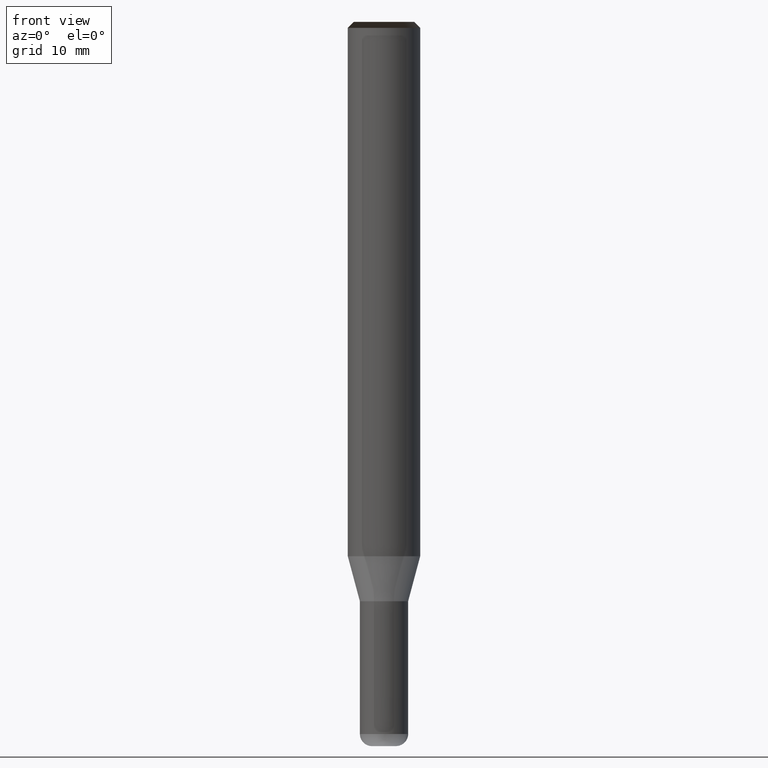
[diagram: clean part render]
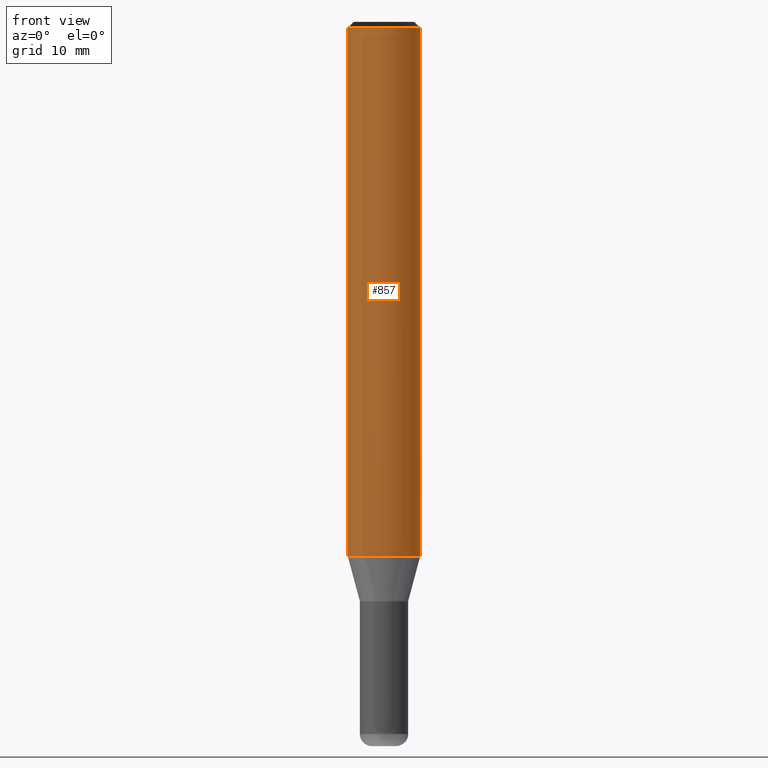
[diagram: same view with one face highlighted and labeled with its STEP entity id]
A machine part, front view. The second image highlights one B-rep face of the part: STEP entity #857.
In plain terms, the highlighted face is a freeform B-spline surface patch.
Its self-contained STEP definition (entity closure, byte-faithful):
#487=CARTESIAN_POINT('',(3.0,0.0,0.0));
#491=CARTESIAN_POINT('',(-3.0,0.0,0.0));
#492=CARTESIAN_POINT('',(3.0,0.0,43.767949192431));
#496=CARTESIAN_POINT('',(-3.0,0.0,43.767949192431));
#506=CARTESIAN_POINT('',(-3.0,-3.0,0.0));
#507=CARTESIAN_POINT('',(0.0,-3.0,0.0));
#508=CARTESIAN_POINT('',(3.0,-3.0,0.0));
#509=CARTESIAN_POINT('',(-3.0,-3.0,43.767949192431));
#510=CARTESIAN_POINT('',(0.0,-3.0,43.767949192431));
#511=CARTESIAN_POINT('',(3.0,-3.0,43.767949192431));
#838=(
BOUNDED_SURFACE()
B_SPLINE_SURFACE(1,2,(
(#491,#506,#507,#508,#487),
(#496,#509,#510,#511,#492)
), .UNSPECIFIED.,.F.,.F.,.F.)
B_SPLINE_SURFACE_WITH_KNOTS((2,2),(3,2,3),(
0.0,1.0),(
0.0,0.5,1.0), .UNSPECIFIED.)
GEOMETRIC_REPRESENTATION_ITEM()
RATIONAL_B_SPLINE_SURFACE(((1.0,0.707106781187,1.0,0.707106781187,1.0),
(1.0,0.707106781187,1.0,0.707106781187,1.0)
))
REPRESENTATION_ITEM('')
SURFACE()
);
#839=(
BOUNDED_CURVE()
B_SPLINE_CURVE(1,(#496,#491),.UNSPECIFIED.,.F.,.F.)
B_SPLINE_CURVE_WITH_KNOTS((2,2),
(0.0,1.0),.UNSPECIFIED.)
CURVE()
GEOMETRIC_REPRESENTATION_ITEM()
RATIONAL_B_SPLINE_CURVE((1.0,1.0))
REPRESENTATION_ITEM('')
);
#840=(
BOUNDED_CURVE()
B_SPLINE_CURVE(2,(#491,#506,#507,#508,#487),.UNSPECIFIED.,.F.,.F.)
B_SPLINE_CURVE_WITH_KNOTS((3,2,3),
(0.0,0.5,1.0),.UNSPECIFIED.)
CURVE()
GEOMETRIC_REPRESENTATION_ITEM()
RATIONAL_B_SPLINE_CURVE((1.0,0.707106781187,1.0,0.707106781187,1.0))
REPRESENTATION_ITEM('')
);
#841=(
BOUNDED_CURVE()
B_SPLINE_CURVE(1,(#487,#492),.UNSPECIFIED.,.F.,.F.)
B_SPLINE_CURVE_WITH_KNOTS((2,2),
(0.0,1.0),.UNSPECIFIED.)
CURVE()
GEOMETRIC_REPRESENTATION_ITEM()
RATIONAL_B_SPLINE_CURVE((1.0,1.0))
REPRESENTATION_ITEM('')
);
#842=(
BOUNDED_CURVE()
B_SPLINE_CURVE(2,(#492,#511,#510,#509,#496),.UNSPECIFIED.,.F.,.F.)
B_SPLINE_CURVE_WITH_KNOTS((3,2,3),
(0.0,0.5,1.0),.UNSPECIFIED.)
CURVE()
GEOMETRIC_REPRESENTATION_ITEM()
RATIONAL_B_SPLINE_CURVE((1.0,0.707106781187,1.0,0.707106781187,1.0))
REPRESENTATION_ITEM('')
);
#843=VERTEX_POINT('',#487);
#844=VERTEX_POINT('',#491);
#845=VERTEX_POINT('',#492);
#846=VERTEX_POINT('',#496);
#847=EDGE_CURVE('',#846,#844,#839,.T.);
#848=EDGE_CURVE('',#844,#843,#840,.T.);
#849=EDGE_CURVE('',#843,#845,#841,.T.);
#850=EDGE_CURVE('',#845,#846,#842,.T.);
#851=ORIENTED_EDGE('',*,*,#847,.T.);
#852=ORIENTED_EDGE('',*,*,#848,.T.);
#853=ORIENTED_EDGE('',*,*,#849,.T.);
#854=ORIENTED_EDGE('',*,*,#850,.T.);
#855=EDGE_LOOP('',(#851,#852,#853,#854));
#856=FACE_OUTER_BOUND('',#855,.T.);
#857=ADVANCED_FACE('',(#856),#838,.T.);